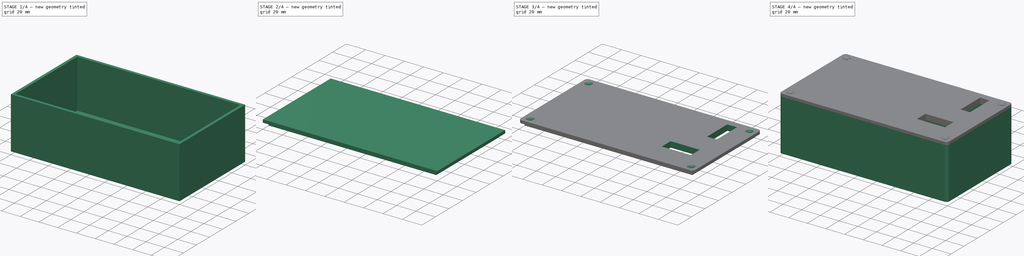
[diagram: build sequence overview — one tinted view per stage of 4, left to right]
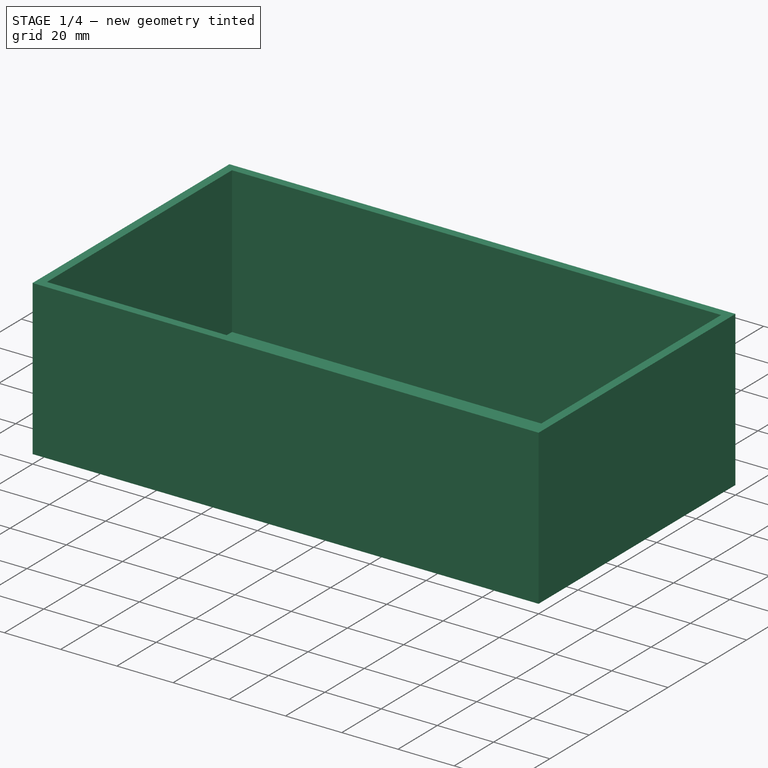
[diagram: stage 1 of 4 — iso view after this stage's code; geometry added in this stage tinted green]
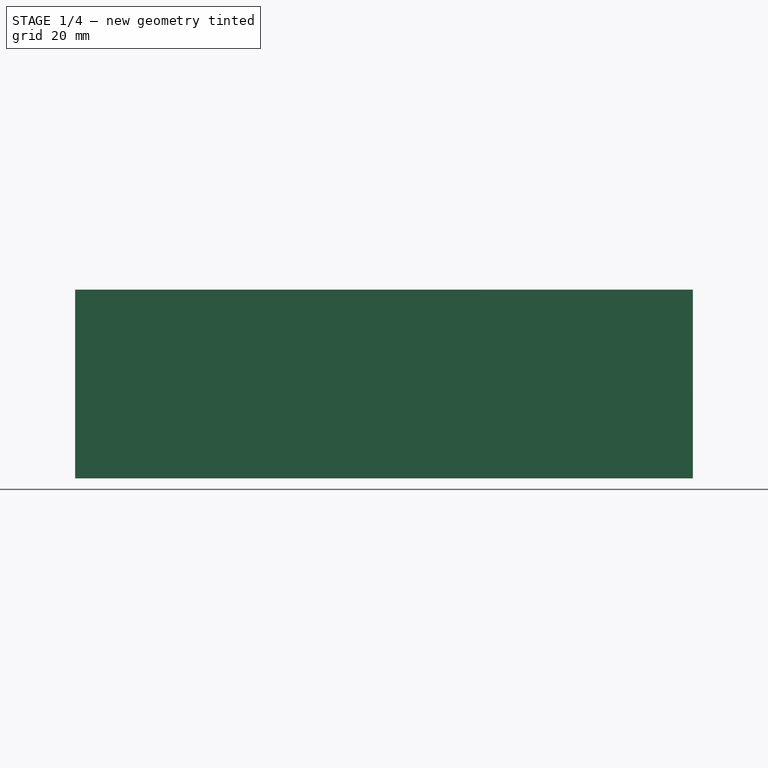
[diagram: stage 1 of 4 — front view after this stage's code; geometry added in this stage tinted green]
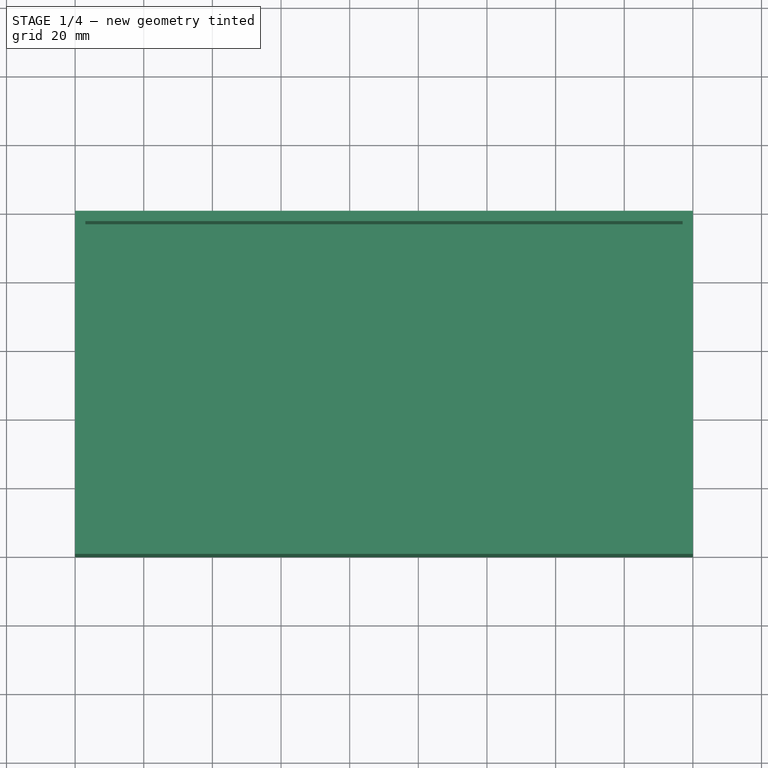
[diagram: stage 1 of 4 — top view after this stage's code; geometry added in this stage tinted green]
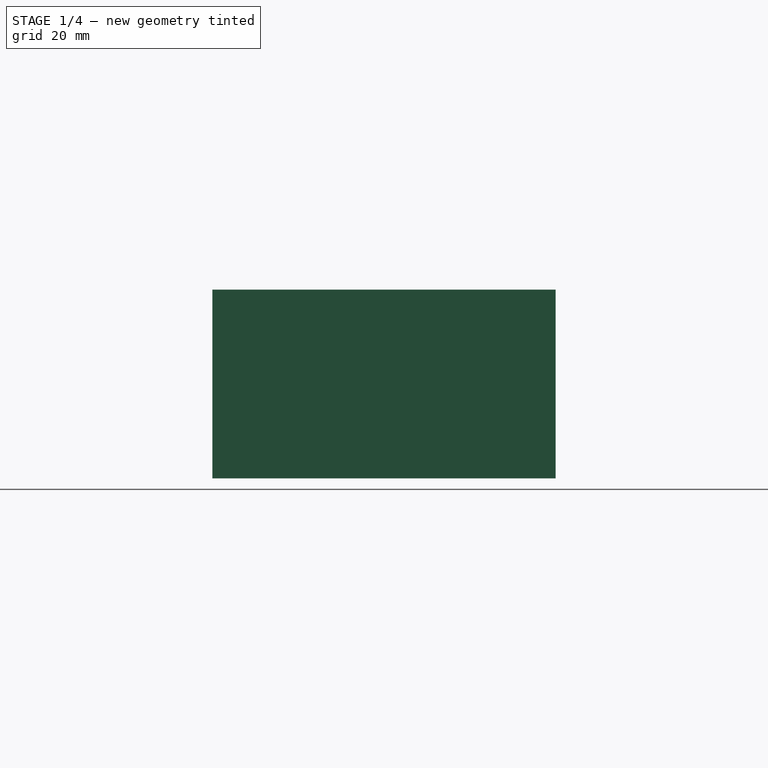
[diagram: stage 1 of 4 — right view after this stage's code; geometry added in this stage tinted green]
FCSTD DOCUMENT  (FreeCAD 1.2R20260204 (Git shallow))
Label: receiver_enclosure_new
License: All rights reserved
LicenseURL: https://en.wikipedia.org/wiki/All_rights_reserved
objects: Sketcher::SketchObject×8, PartDesign::Pad×4, PartDesign::Pocket×3, PartDesign::Fillet×3, App::Point×2, PartDesign::Body×2, PartDesign::Thickness×1, PartDesign::ShapeBinder×1, PartDesign::Hole×1
note: 55 computed .brp shape members not serialized (recipe doc carries the construction recipe); baked Part::Feature solids carry a one-line shape summary decoded from their .brp

FEATURE [App::Point] Origin001
  Role = Origin
FEATURE [Sketcher::SketchObject] Sketch
  ArcFitTolerance = 1e-06
  AttachmentSupport = -> [Origin]
  ExternalTypes = [0]
  FullyConstrained = true
  MakeInternals = false
  MapMode = 5
  sketch-geometry (4):
    g0: LineSegment StartX=0 StartY=0 StartZ=0 EndX=180 EndY=0 EndZ=0
    g1: LineSegment StartX=180 StartY=0 StartZ=0 EndX=180 EndY=100 EndZ=0
    g2: LineSegment StartX=180 StartY=100 StartZ=0 EndX=0 EndY=100 EndZ=0
    g3: LineSegment StartX=0 StartY=100 StartZ=0 EndX=0 EndY=0 EndZ=0
  constraints (11):
    c: Coincident(g0,g1)
    c: Coincident(g1,g2)
    c: Coincident(g2,g3)
    c: Coincident(g3,g0)
    c: Horizontal(g0)
    c: Horizontal(g2)
    c: Vertical(g1)
    c: Vertical(g3)
    c: Coincident(g0,g-1)
    c: DistanceY(g3,g3) = 100
    c: DistanceX(g2,g2) = 180
FEATURE [PartDesign::Pad] Pad
  Direction = (0,0,1)
  Length = 55
  Length2 = 10
  Profile = -> Sketch
  ReferenceAxis = -> Sketch [N_Axis]
  Refine = true
  SideType = 0
  Suppressed = false
  Type = 0
  Type2 = 0
FEATURE [PartDesign::Thickness] Thickness
  Base = -> Pad [Face6]
  BaseFeature = -> Pad
  Intersection = false
  Join = 0
  Mode = 0
  Refine = true
  Reversed = true
  SupportTransform = false
  Suppressed = false
  Value = 3
FEATURE [Sketcher::SketchObject] Sketch001
  ArcFitTolerance = 1e-06
  AttachmentSupport = -> [Origin]
  ExternalTypes = [0,0,0,0]
  FullyConstrained = true
  MakeInternals = false
  MapMode = 5
  Placement = pos=(0,0,0) rot=(0.57735,0.57735,0.57735;2.0944rad)
  sketch-geometry (1):
    g0: Circle CenterX=43 CenterY=9 CenterZ=0 NormalX=0 NormalY=0 NormalZ=1 AngleXU=0 Radius=4
  constraints (3):
    c: Diameter(g0) = 8
    c: DistanceY(g-1,g0) = 9
    c: Distance(g0,g-5) = 40
FEATURE [PartDesign::Pocket] Pocket
  BaseFeature = -> Thickness
  Direction = (-1,0,0)
  Length = 16
  Length2 = 5
  Profile = -> Sketch001
  ReferenceAxis = -> Sketch001 [N_Axis]
  Refine = true
  Reversed = true
  SideType = 0
  Suppressed = false
  Type = 0
  Type2 = 0
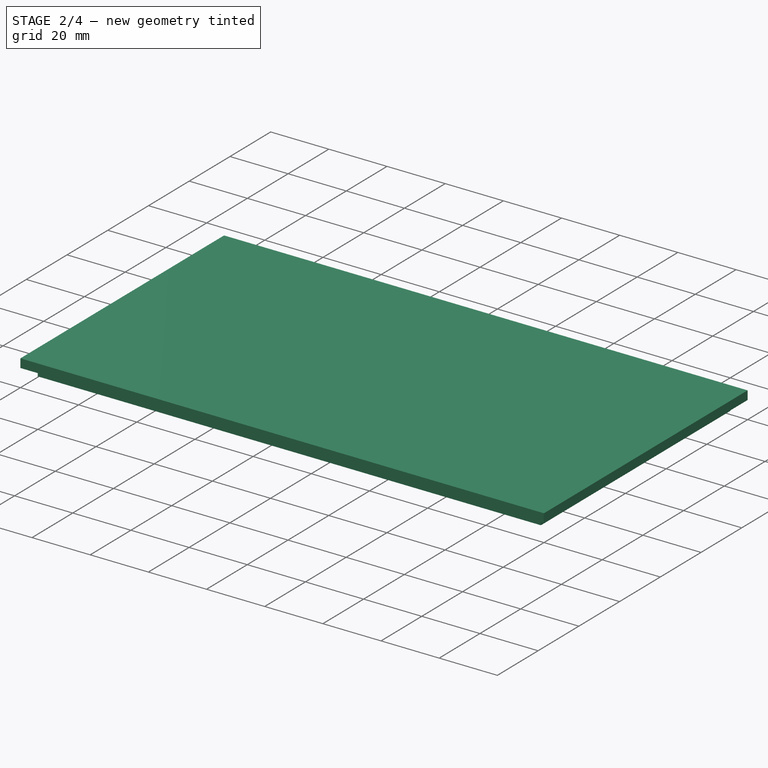
[diagram: stage 2 of 4 — iso view after this stage's code; geometry added in this stage tinted green]
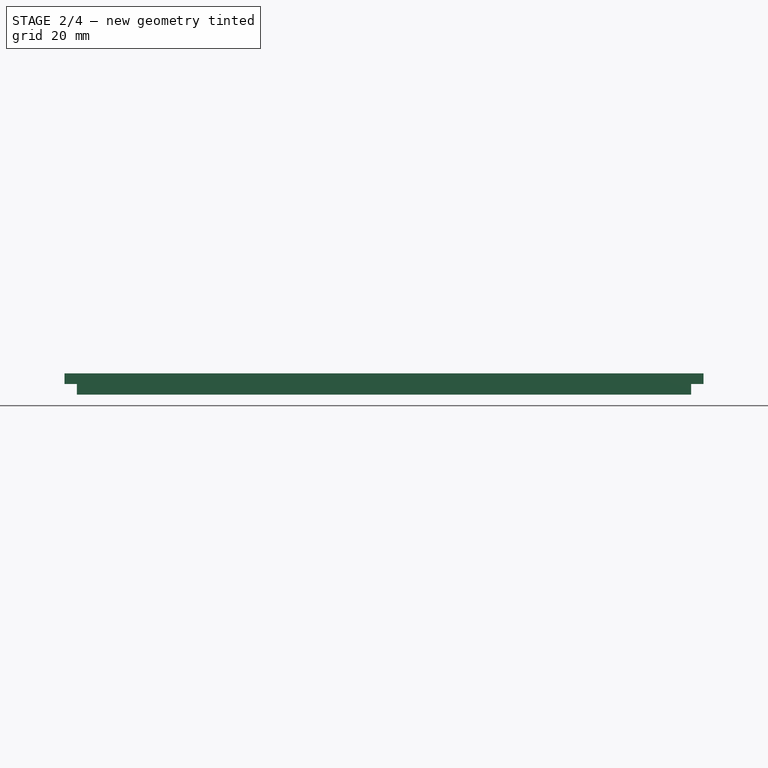
[diagram: stage 2 of 4 — front view after this stage's code; geometry added in this stage tinted green]
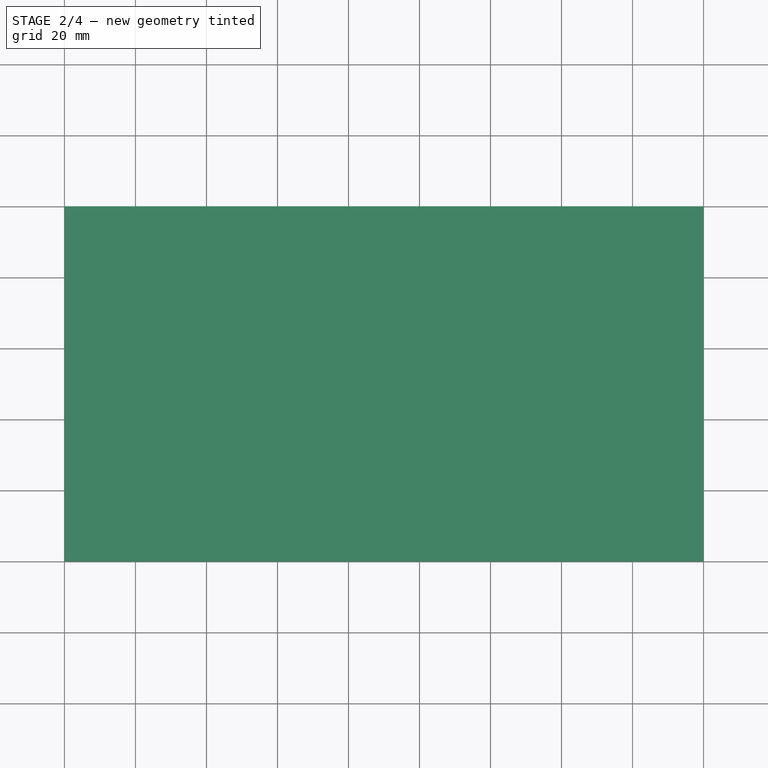
[diagram: stage 2 of 4 — top view after this stage's code; geometry added in this stage tinted green]
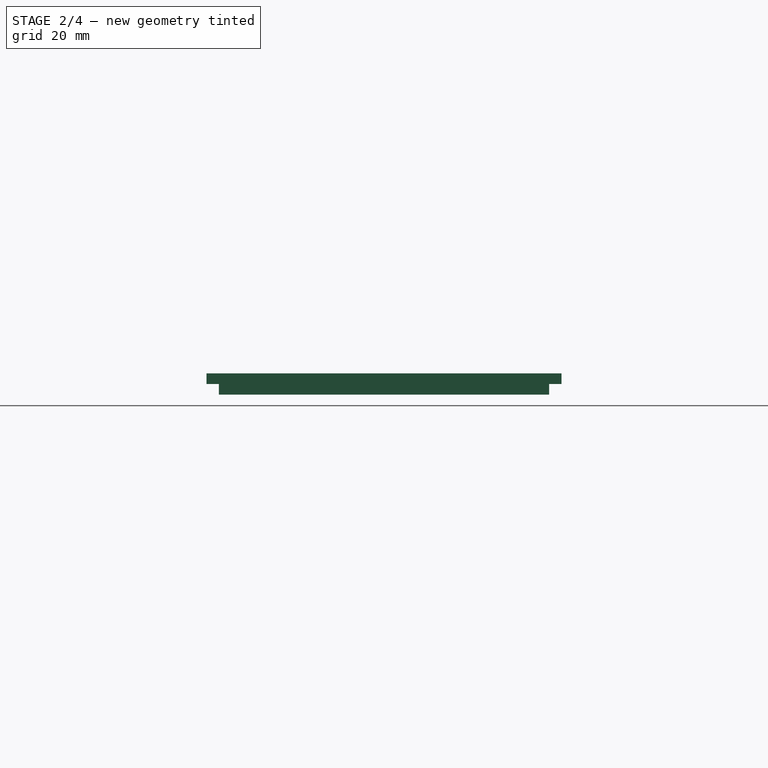
[diagram: stage 2 of 4 — right view after this stage's code; geometry added in this stage tinted green]
FEATURE [App::Point] Origin003
  Role = Origin
FEATURE [Sketcher::SketchObject] Sketch005
  ArcFitTolerance = 1e-06
  ExternalTypes = [0,0]
  FullyConstrained = true
  MakeInternals = false
  MapMode = 5
  Placement = pos=(0,0,60) rot=(0,0,1;0rad)
  sketch-geometry (20):
    g0: LineSegment StartX=3 StartY=97 StartZ=0 EndX=3 EndY=89 EndZ=0
    g1: LineSegment StartX=3 StartY=89 StartZ=0 EndX=11 EndY=89 EndZ=0
    g2: LineSegment StartX=11 StartY=89 StartZ=0 EndX=11 EndY=97 EndZ=0
    g3: LineSegment StartX=11 StartY=97 StartZ=0 EndX=3 EndY=97 EndZ=0
    g4: LineSegment StartX=177 StartY=3 StartZ=0 EndX=177 EndY=11 EndZ=0
    g5: LineSegment StartX=177 StartY=11 StartZ=0 EndX=169 EndY=11 EndZ=0
    g6: LineSegment StartX=169 StartY=11 StartZ=0 EndX=169 EndY=3 EndZ=0
    g7: LineSegment StartX=169 StartY=3 StartZ=0 EndX=177 EndY=3 EndZ=0
    g8: LineSegment StartX=177 StartY=97 StartZ=0 EndX=169 EndY=97 EndZ=0
    g9: LineSegment StartX=169 StartY=97 StartZ=0 EndX=169 EndY=89 EndZ=0
    g10: LineSegment StartX=169 StartY=89 StartZ=0 EndX=177 EndY=89 EndZ=0
    g11: LineSegment StartX=177 StartY=89 StartZ=0 EndX=177 EndY=97 EndZ=0
    g12: LineSegment StartX=3 StartY=3 StartZ=0 EndX=11 EndY=3 EndZ=0
    g13: LineSegment StartX=11 StartY=3 StartZ=0 EndX=11 EndY=11 EndZ=0
    g14: LineSegment StartX=11 StartY=11 StartZ=0 EndX=3 EndY=11 EndZ=0
    g15: LineSegment StartX=3 StartY=11 StartZ=0 EndX=3 EndY=3 EndZ=0
    g16: Circle CenterX=7 CenterY=93 CenterZ=0 NormalX=0 NormalY=0 NormalZ=1 AngleXU=0 Radius=1.5
    g17: Circle CenterX=7 CenterY=7 CenterZ=0 NormalX=0 NormalY=0 NormalZ=1 AngleXU=0 Radius=1.5
    g18: Circle CenterX=173 CenterY=7 CenterZ=0 NormalX=0 NormalY=0 NormalZ=1 AngleXU=0 Radius=1.5
    g19: Circle CenterX=173 CenterY=93 CenterZ=0 NormalX=0 NormalY=0 NormalZ=1 AngleXU=0 Radius=1.5
  constraints (54):
    c: Coincident(g0,g1)
    c: Coincident(g1,g2)
    c: Coincident(g2,g3)
    c: Coincident(g3,g0)
    c: Vertical(g0)
    c: Horizontal(g1)
    c: Coincident(g4,g5)
    c: Coincident(g5,g6)
    c: Coincident(g6,g7)
    c: Coincident(g7,g4)
    c: Vertical(g4)
    c: Horizontal(g5)
    c: Coincident(g4,g-3)
    c: DistanceY(g1,g2) = 8
    c: Equal(g2,g1)
    c: DistanceY(g6,g6) = 8
    c: Equal(g6,g5)
    c: Coincident(g8,g9)
    c: Coincident(g9,g10)
    c: Coincident(g10,g11)
    c: Coincident(g11,g8)
    c: Horizontal(g8)
    c: Vertical(g9)
    c: Distance(g9,g9) = 8
    c: Equal(g10,g9)
    c: Coincident(g12,g13)
    c: Coincident(g13,g14)
    c: Coincident(g14,g15)
    c: Coincident(g15,g12)
    c: Horizontal(g12)
    c: Vertical(g13)
    c: Coincident(g12,g-3)
    c: DistanceX(g14,g14) = 8
    c: Equal(g14,g13)
    c: Parallel(g3,g1)
    c: Parallel(g12,g14)
    c: Parallel(g10,g8)
    c: Parallel(g7,g5)
    c: Parallel(g4,g6)
    c: Parallel(g9,g11)
    c: Parallel(g2,g0)
    c: Parallel(g13,g15)
    c: Diameter(g16) = 3
    c: Symmetric(g1,g0,g16)
    c: Diameter(g17) = 3
    c: Symmetric(g12,g14,g17)
    c: Diameter(g18) = 3
    c: Symmetric(g5,g4,g18)
    c: Diameter(g19) = 3
    c: Symmetric(g8,g10,g19)
    c: DistanceY(g12,g0) = 94
    c: DistanceY(g4,g8) = 94
    c: Vertical(g0,g14)
    c: Vertical(g10,g4)
FEATURE [PartDesign::Pad] Pad004
  BaseFeature = -> Pocket
  Direction = (0,0,1)
  Length = -8
  Length2 = 57
  Profile = -> Sketch005
  ReferenceAxis = -> Sketch005 [N_Axis]
  Refine = true
  SideType = 1
  Suppressed = false
  Type = 0
  Type2 = 0
FEATURE [PartDesign::ShapeBinder] ReferencePad001
  Placement = pos=(0,0,55) rot=(0,0,1;0rad)
  Support = -> [Pad004]
  TraceSupport = false
FEATURE [Sketcher::SketchObject] Sketch003
  ArcFitTolerance = 1e-06
  AttachmentSupport = -> [ReferencePad001]
  ExternalGeometry = -> [ReferencePad001]
  ExternalTypes = [0,0]
  FullyConstrained = true
  MakeInternals = false
  MapMode = 5
  Placement = pos=(0,0,55) rot=(0,0,1;0rad)
  sketch-geometry (4):
    g0: LineSegment StartX=3.5 StartY=96.5 StartZ=0 EndX=3.5 EndY=3.5 EndZ=0
    g1: LineSegment StartX=3.5 StartY=3.5 StartZ=0 EndX=176.5 EndY=3.5 EndZ=0
    g2: LineSegment StartX=176.5 StartY=3.5 StartZ=0 EndX=176.5 EndY=96.5 EndZ=0
    g3: LineSegment StartX=176.5 StartY=96.5 StartZ=0 EndX=3.5 EndY=96.5 EndZ=0
  constraints (12):
    c: Coincident(g0,g1)
    c: Coincident(g1,g2)
    c: Coincident(g2,g3)
    c: Coincident(g3,g0)
    c: Vertical(g0)
    c: Vertical(g2)
    c: Horizontal(g1)
    c: Horizontal(g3)
    c: DistanceY(g0,g-3) = 0.5
    c: DistanceX(g-3,g0) = 0.5
    c: DistanceY(g-4,g1) = 0.5
    c: DistanceX(g1,g-4) = 0.5
FEATURE [PartDesign::Pad] Pad002
  Direction = (0,0,1)
  Length = 3
  Length2 = 10
  Placement = pos=(0,0,55) rot=(0,0,1;0rad)
  Profile = -> Sketch003
  ReferenceAxis = -> Sketch003 [N_Axis]
  Refine = true
  Reversed = true
  SideType = 0
  Suppressed = false
  Type = 0
  Type2 = 0
FEATURE [Sketcher::SketchObject] Sketch004
  ArcFitTolerance = 1e-06
  AttachmentSupport = -> [Pad002]
  ExternalGeometry = -> [ReferencePad001,Pad002]
  ExternalTypes = [0,0,0,0,0,0]
  FullyConstrained = true
  MakeInternals = false
  MapMode = 5
  Placement = pos=(0,0,55) rot=(0,0,1;0rad)
  sketch-geometry (4):
    g0: LineSegment StartX=0 StartY=100 StartZ=0 EndX=0 EndY=0 EndZ=0
    g1: LineSegment StartX=0 StartY=0 StartZ=0 EndX=180 EndY=0 EndZ=0
    g2: LineSegment StartX=180 StartY=0 StartZ=0 EndX=180 EndY=100 EndZ=0
    g3: LineSegment StartX=180 StartY=100 StartZ=0 EndX=0 EndY=100 EndZ=0
  constraints (10):
    c: Coincident(g0,g1)
    c: Coincident(g1,g2)
    c: Coincident(g2,g3)
    c: Coincident(g3,g0)
    c: Vertical(g0)
    c: Vertical(g2)
    c: Horizontal(g1)
    c: Horizontal(g3)
    c: Coincident(g0,g-3)
    c: Coincident(g1,g-4)
FEATURE [PartDesign::Pad] Pad003
  BaseFeature = -> Pad002
  Direction = (0,0,1)
  Length = 3
  Length2 = 10
  Placement = pos=(0,0,55) rot=(0,0,1;0rad)
  Profile = -> Sketch004
  ReferenceAxis = -> Sketch004 [N_Axis]
  Refine = true
  SideType = 0
  Suppressed = false
  Type = 0
  Type2 = 0
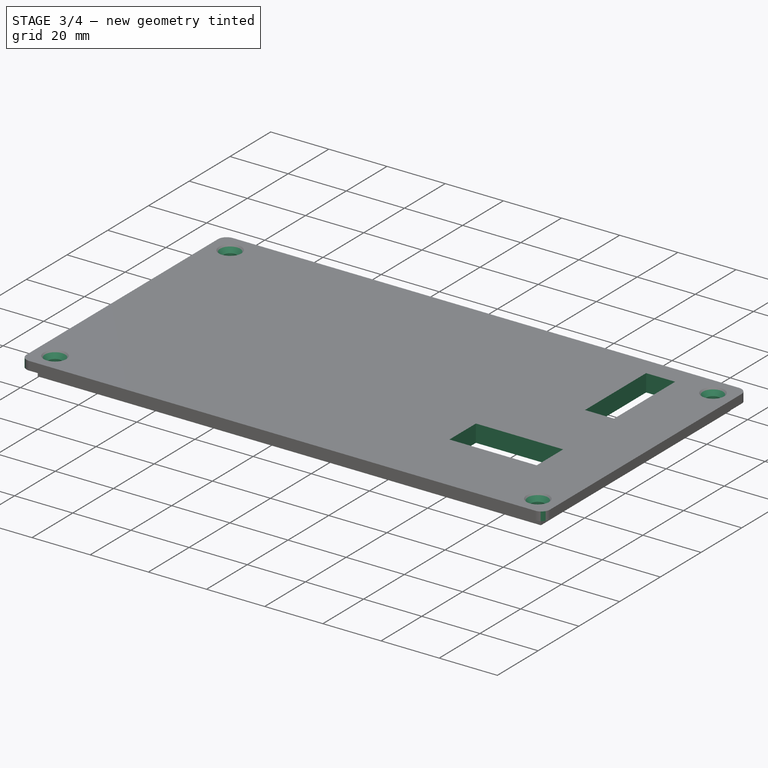
[diagram: stage 3 of 4 — iso view after this stage's code; geometry added in this stage tinted green]
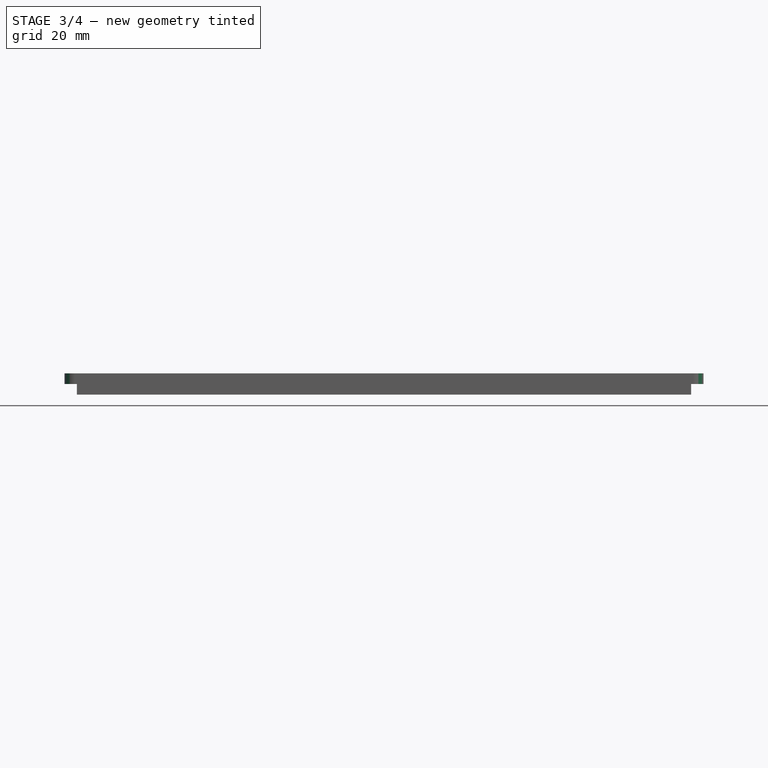
[diagram: stage 3 of 4 — front view after this stage's code; geometry added in this stage tinted green]
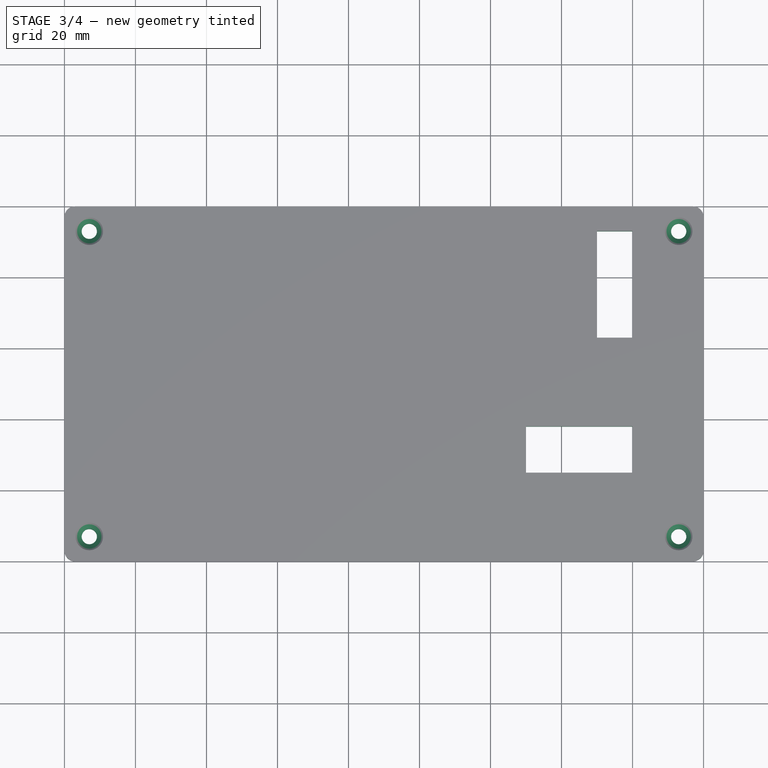
[diagram: stage 3 of 4 — top view after this stage's code; geometry added in this stage tinted green]
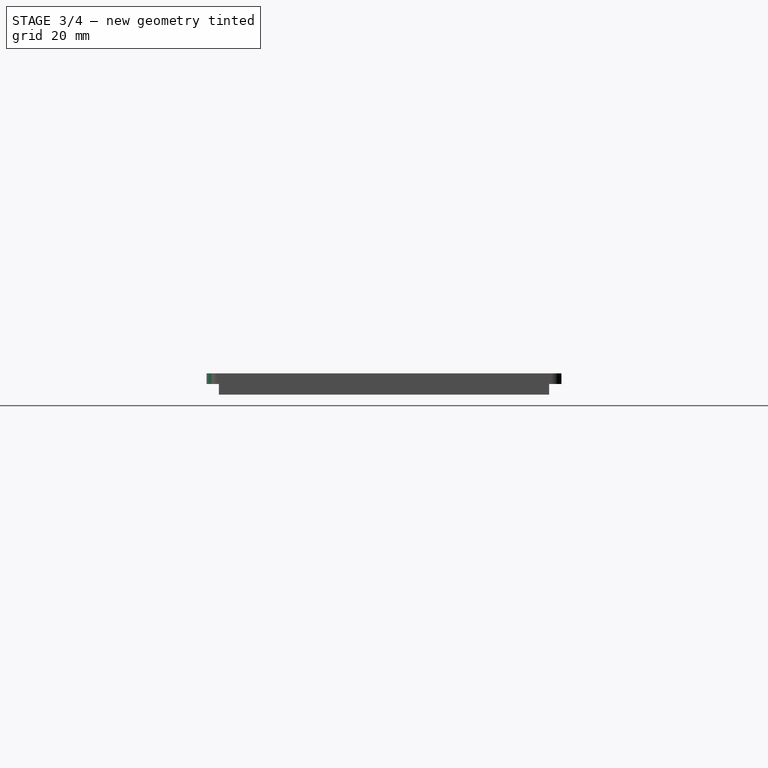
[diagram: stage 3 of 4 — right view after this stage's code; geometry added in this stage tinted green]
FEATURE [Sketcher::SketchObject] Sketch006
  ArcFitTolerance = 1e-06
  AttachmentSupport = -> [Pad003]
  ExternalGeometry = -> [Pad003]
  ExternalTypes = [0,0]
  FullyConstrained = true
  MakeInternals = false
  MapMode = 5
  Placement = pos=(0,0,58) rot=(0,0,1;0rad)
  sketch-geometry (4):
    g0: Circle CenterX=7 CenterY=93 CenterZ=0 NormalX=0 NormalY=0 NormalZ=1 AngleXU=0 Radius=1.5
    g1: Circle CenterX=7 CenterY=7 CenterZ=0 NormalX=0 NormalY=0 NormalZ=1 AngleXU=0 Radius=1.5
    g2: Circle CenterX=173 CenterY=93 CenterZ=0 NormalX=0 NormalY=0 NormalZ=1 AngleXU=0 Radius=1.5
    g3: Circle CenterX=173 CenterY=7 CenterZ=0 NormalX=0 NormalY=0 NormalZ=1 AngleXU=0 Radius=1.5
  constraints (12):
    c: Diameter(g0) = 3
    c: Equal(g0,g1)
    c: Equal(g1,g3)
    c: Equal(g3,g2)
    c: DistanceX(g-3,g0) = 7
    c: DistanceY(g0,g-3) = 7
    c: DistanceX(g-4,g1) = 7
    c: DistanceY(g-1,g1) = 7
    c: DistanceY(g-4,g3) = 7
    c: DistanceX(g3,g-4) = 7
    c: DistanceX(g2,g-3) = 7
    c: DistanceY(g2,g-3) = 7
FEATURE [PartDesign::Hole] Hole
  BaseFeature = -> Pad003
  BaseProfileType = 7
  CustomThreadClearance = 0
  Depth = 25
  DepthType = 0
  Diameter = 4.3
  DrillForDepth = false
  DrillPoint = 1
  DrillPointAngle = 118
  HoleCutCountersinkAngle = 82
  HoleCutCustomValues = false
  HoleCutDepth = 4.45193
  HoleCutDiameter = 7.74
  HoleCutType = 2
  ModelThread = false
  Placement = pos=(0,0,55) rot=(0,0,1;0rad)
  Profile = -> Sketch006
  Refine = true
  Suppressed = false
  Tapered = false
  TaperedAngle = 90
  ThreadClass = 0
  ThreadDepth = 25
  ThreadDepthType = 0
  ThreadDiameter = 3.505
  ThreadDirection = 0
  ThreadFit = 0
  ThreadSize = 5
  ThreadType = 3
  Threaded = false
  UseCustomThreadClearance = false
FEATURE [Sketcher::SketchObject] Sketch007
  ArcFitTolerance = 1e-06
  AttachmentSupport = -> [Hole]
  ExternalGeometry = -> [Hole]
  ExternalTypes = [0,0]
  FullyConstrained = true
  MakeInternals = false
  MapMode = 5
  Placement = pos=(0,0,58) rot=(0,0,1;0rad)
  sketch-geometry (8):
    g0: LineSegment StartX=150 StartY=93 StartZ=0 EndX=150 EndY=63 EndZ=0
    g1: LineSegment StartX=150 StartY=63 StartZ=0 EndX=160 EndY=63 EndZ=0
    g2: LineSegment StartX=160 StartY=63 StartZ=0 EndX=160 EndY=93 EndZ=0
    g3: LineSegment StartX=160 StartY=93 StartZ=0 EndX=150 EndY=93 EndZ=0
    g4: LineSegment StartX=160 StartY=38 StartZ=0 EndX=130 EndY=38 EndZ=0
    g5: LineSegment StartX=130 StartY=38 StartZ=0 EndX=130 EndY=25 EndZ=0
    g6: LineSegment StartX=130 StartY=25 StartZ=0 EndX=160 EndY=25 EndZ=0
    g7: LineSegment StartX=160 StartY=25 StartZ=0 EndX=160 EndY=38 EndZ=0
  constraints (24):
    c: Coincident(g0,g1)
    c: Coincident(g1,g2)
    c: Coincident(g2,g3)
    c: Coincident(g3,g0)
    c: Vertical(g0)
    c: Vertical(g2)
    c: Horizontal(g1)
    c: Horizontal(g3)
    c: DistanceY(g1,g2) = 30
    c: DistanceX(g0,g1) = 10
    c: DistanceX(g2,g-3) = 20
    c: DistanceY(g2,g-3) = 7
    c: Coincident(g4,g5)
    c: Coincident(g5,g6)
    c: Coincident(g6,g7)
    c: Coincident(g7,g4)
    c: Horizontal(g4)
    c: Horizontal(g6)
    c: Vertical(g5)
    c: Vertical(g7)
    c: Vertical(g4,g1)
    c: DistanceX(g4,g4) = 30
    c: DistanceY(g5,g4) = 13
    c: DistanceY(g4,g1) = 25
FEATURE [PartDesign::Pocket] Pocket001
  BaseFeature = -> Hole
  Direction = (0,0,-1)
  Length = 5
  Length2 = 5
  Placement = pos=(0,0,55) rot=(0,0,1;0rad)
  Profile = -> Sketch007
  ReferenceAxis = -> Sketch007 [N_Axis]
  Refine = true
  SideType = 0
  Suppressed = false
  Type = 2
  Type2 = 0
FEATURE [PartDesign::Body] Body
  AllowCompound = true
  Group = -> [Sketch,Pad,Thickness,Sketch001,Pocket,Sketch005,Pad004,Sketch008,Pocket002,Fillet,Fillet001]
  Origin = -> Origin
  Tip = -> Fillet001
FEATURE [PartDesign::Fillet] Fillet002
  Base = -> Pocket001 [Edge34,Edge32,Edge29,Edge30]
  BaseFeature = -> Pocket001
  Placement = pos=(0,0,55) rot=(0,0,1;0rad)
  Radius = 3
  Refine = true
  SupportTransform = false
  Suppressed = false
  UseAllEdges = false
FEATURE [PartDesign::Body] Body001
  AllowCompound = true
  Group = -> [ReferencePad001,Sketch003,Pad002,Sketch004,Pad003,Sketch006,Hole,Sketch007,Pocket001,Fillet002]
  Origin = -> Origin002
  Placement = pos=(0,0,30) rot=(0,0,1;0rad)
  Tip = -> Fillet002
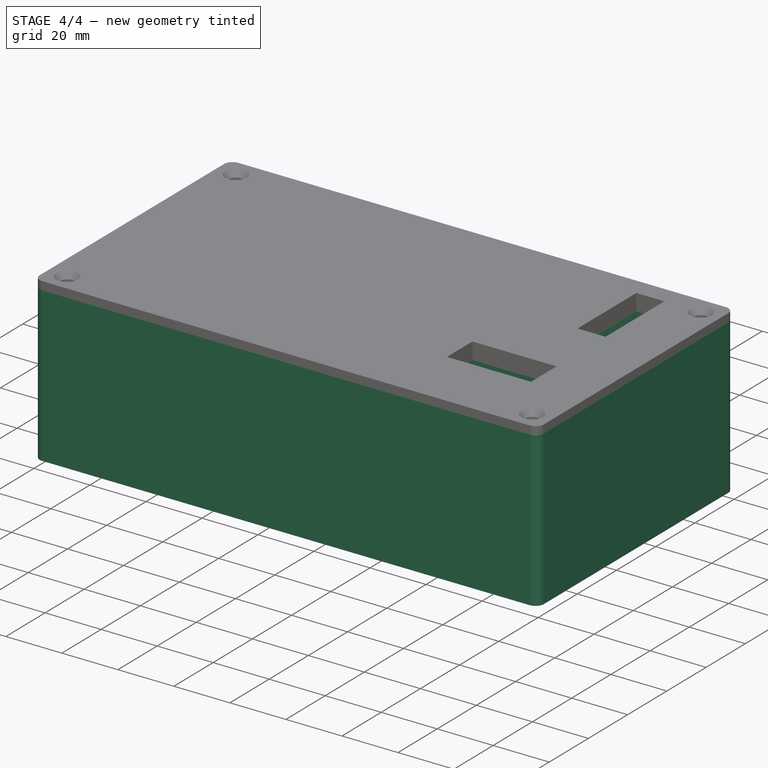
[diagram: stage 4 of 4 — iso view after this stage's code; geometry added in this stage tinted green]
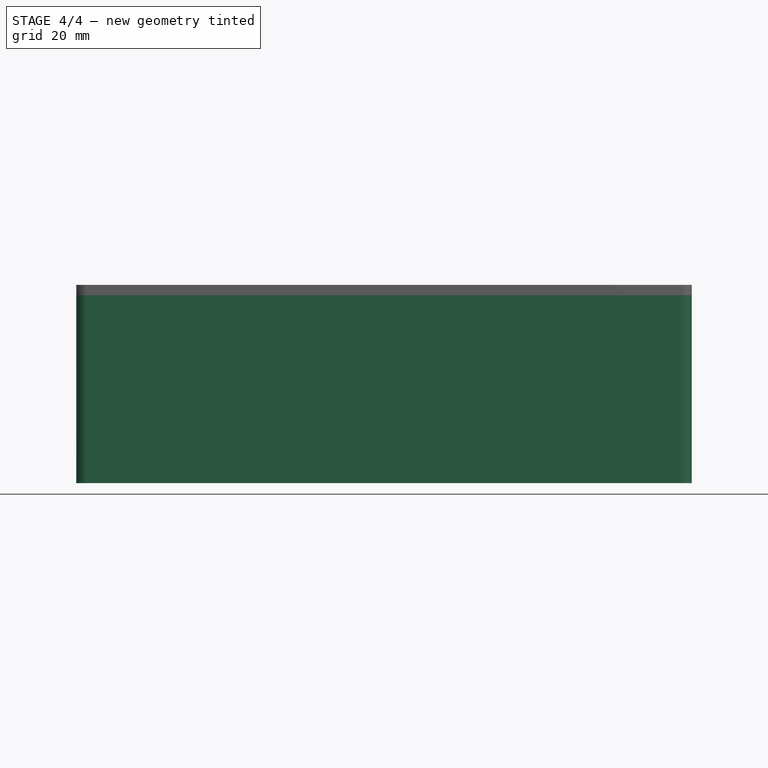
[diagram: stage 4 of 4 — front view after this stage's code; geometry added in this stage tinted green]
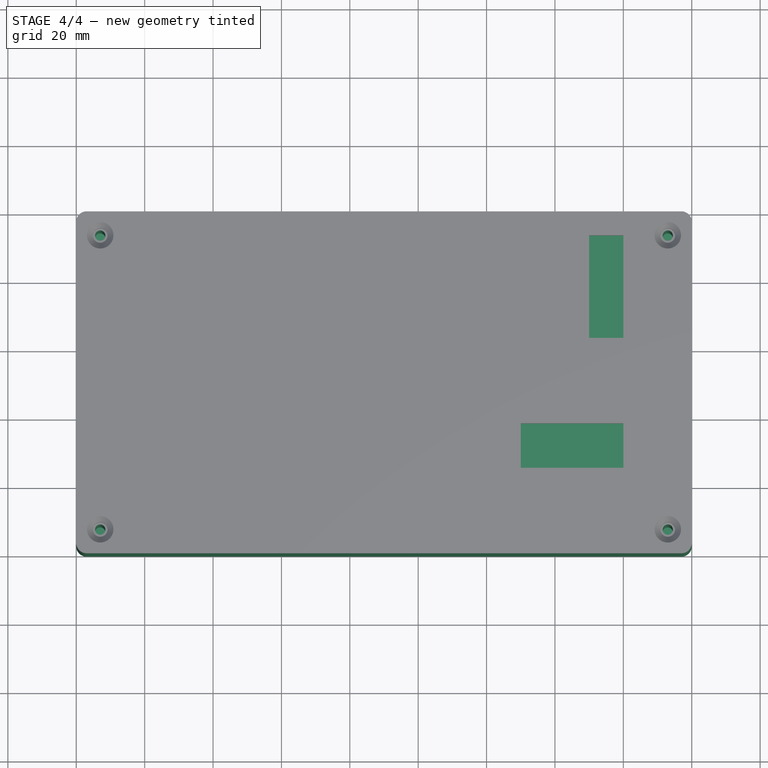
[diagram: stage 4 of 4 — top view after this stage's code; geometry added in this stage tinted green]
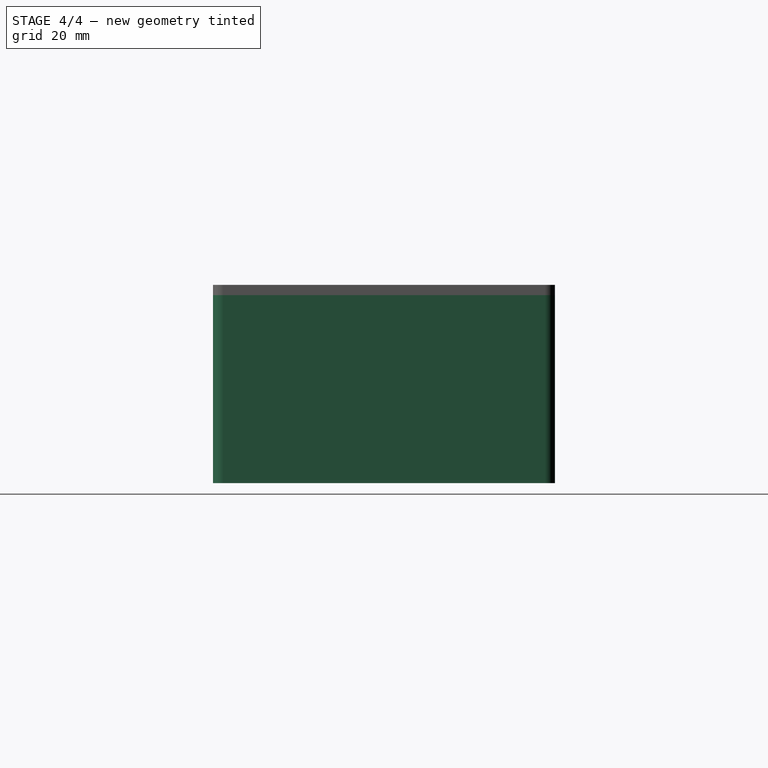
[diagram: stage 4 of 4 — right view after this stage's code; geometry added in this stage tinted green]
FEATURE [Sketcher::SketchObject] Sketch008
  ArcFitTolerance = 1e-06
  AttachmentSupport = -> [Pad004]
  ExternalGeometry = -> [Pad004]
  ExternalTypes = [0,0]
  FullyConstrained = true
  MakeInternals = false
  MapMode = 5
  Placement = pos=(0,0,3) rot=(0,0,1;0rad)
  sketch-geometry (4):
    g0: LineSegment StartX=149 StartY=82 StartZ=0 EndX=149 EndY=74 EndZ=0
    g1: LineSegment StartX=149 StartY=74 StartZ=0 EndX=147 EndY=74 EndZ=0
    g2: LineSegment StartX=147 StartY=74 StartZ=0 EndX=147 EndY=82 EndZ=0
    g3: LineSegment StartX=147 StartY=82 StartZ=0 EndX=149 EndY=82 EndZ=0
  constraints (12):
    c: Coincident(g0,g1)
    c: Coincident(g1,g2)
    c: Coincident(g2,g3)
    c: Coincident(g3,g0)
    c: Vertical(g0)
    c: Vertical(g2)
    c: Horizontal(g1)
    c: Horizontal(g3)
    c: Distance(g0,g2) = 2
    c: Distance(g1,g3) = 8
    c: DistanceX(g2,g-3) = 33
    c: DistanceY(g0,g-3) = 18
FEATURE [PartDesign::Pocket] Pocket002
  BaseFeature = -> Pad004
  Direction = (0,0,-1)
  Length = 5
  Length2 = 5
  Profile = -> Sketch008
  ReferenceAxis = -> Sketch008 [N_Axis]
  Refine = true
  SideType = 0
  Suppressed = false
  Type = 2
  Type2 = 0
FEATURE [PartDesign::Fillet] Fillet
  Base = -> Pocket002 [Edge67,Edge68,Edge79,Edge75]
  BaseFeature = -> Pocket002
  Radius = 3
  Refine = true
  SupportTransform = false
  Suppressed = false
  UseAllEdges = false
FEATURE [PartDesign::Fillet] Fillet001
  Base = -> Fillet [Edge93,Edge94,Edge92,Edge95]
  BaseFeature = -> Fillet
  Radius = 3
  Refine = true
  SupportTransform = false
  Suppressed = false
  UseAllEdges = false
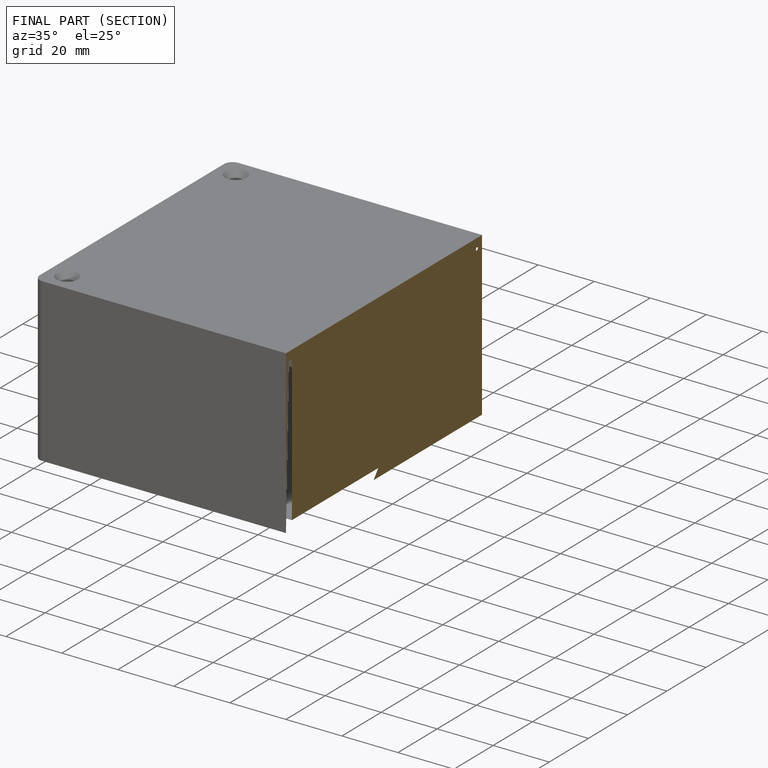
[diagram: finished part — half-section view (interior)]
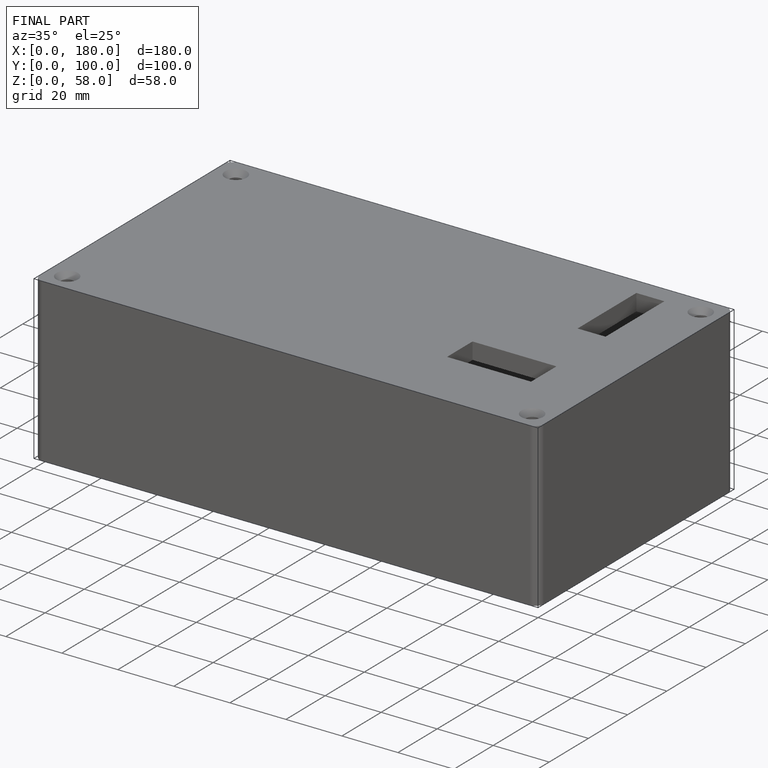
[diagram: finished part — iso view with bounding-box wireframe]
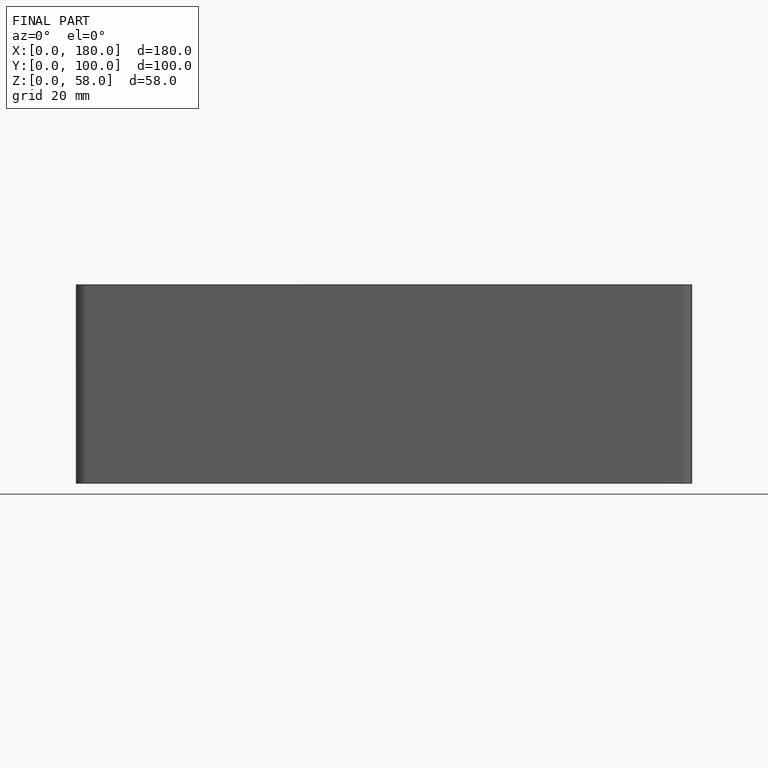
[diagram: finished part — front view with bounding-box wireframe]
